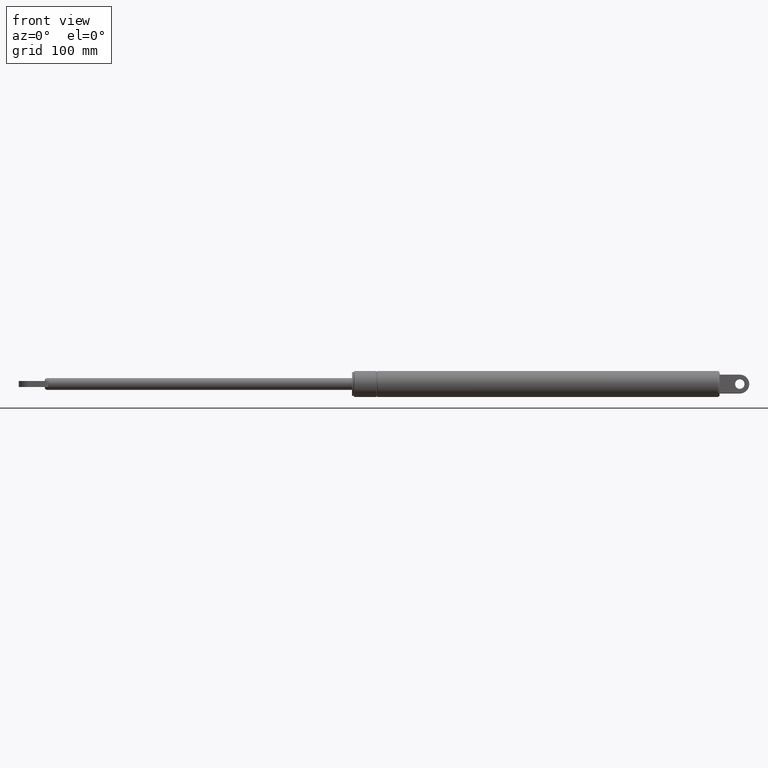
[diagram: clean part render]
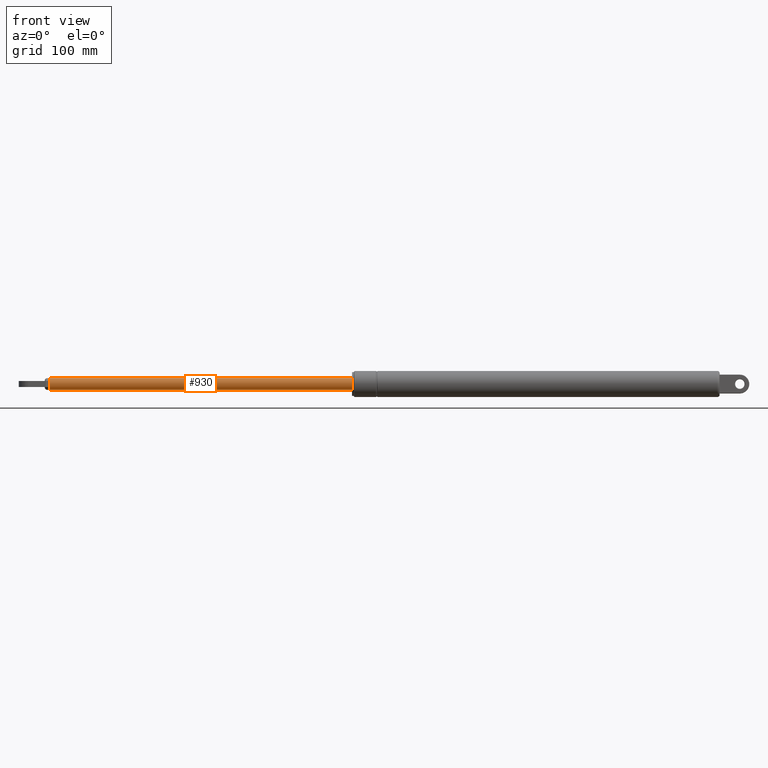
[diagram: same view with one face highlighted and labeled with its STEP entity id]
A machine part, front view. The second image highlights one B-rep face of the part: STEP entity #930.
In plain terms, the highlighted cylindrical surface (bore or boss wall) has radius 5 mm, axis along (-1, -0, 0).
Its self-contained STEP definition (entity closure, byte-faithful):
#180=CYLINDRICAL_SURFACE('',#1050,5.00000000000002);
#209=FACE_BOUND('',#342,.T.);
#257=FACE_OUTER_BOUND('',#341,.T.);
#341=EDGE_LOOP('',(#786));
#342=EDGE_LOOP('',(#787));
#407=CIRCLE('',#1037,5.00000000000002);
#415=CIRCLE('',#1051,5.);
#481=VERTEX_POINT('',#1582);
#493=VERTEX_POINT('',#1628);
#581=EDGE_CURVE('',#481,#481,#407,.T.);
#599=EDGE_CURVE('',#493,#493,#415,.T.);
#786=ORIENTED_EDGE('',*,*,#599,.T.);
#787=ORIENTED_EDGE('',*,*,#581,.T.);
#930=ADVANCED_FACE('',(#257,#209),#180,.T.);
#1037=AXIS2_PLACEMENT_3D('',#1583,#1278,#1279);
#1050=AXIS2_PLACEMENT_3D('',#1627,#1312,#1313);
#1051=AXIS2_PLACEMENT_3D('',#1629,#1314,#1315);
#1278=DIRECTION('center_axis',(1.,0.,0.));
#1279=DIRECTION('ref_axis',(0.,0.,1.));
#1312=DIRECTION('center_axis',(-1.,0.,0.));
#1313=DIRECTION('ref_axis',(0.,0.,1.));
#1314=DIRECTION('center_axis',(-1.,0.,0.));
#1315=DIRECTION('ref_axis',(0.,0.,1.));
#1582=CARTESIAN_POINT('',(0.999999999999996,6.12323399573679E-16,-5.00000000000002));
#1583=CARTESIAN_POINT('Origin',(0.999999999999996,0.,0.));
#1627=CARTESIAN_POINT('Origin',(128.,0.,0.));
#1628=CARTESIAN_POINT('',(256.,0.,5.));
#1629=CARTESIAN_POINT('Origin',(256.,0.,0.));